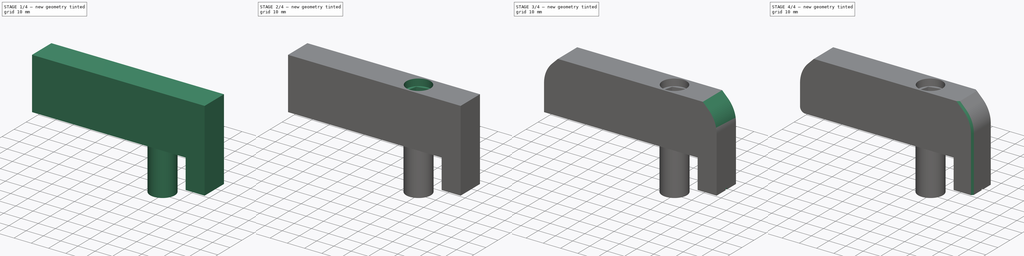
[diagram: build sequence overview — one tinted view per stage of 4, left to right]
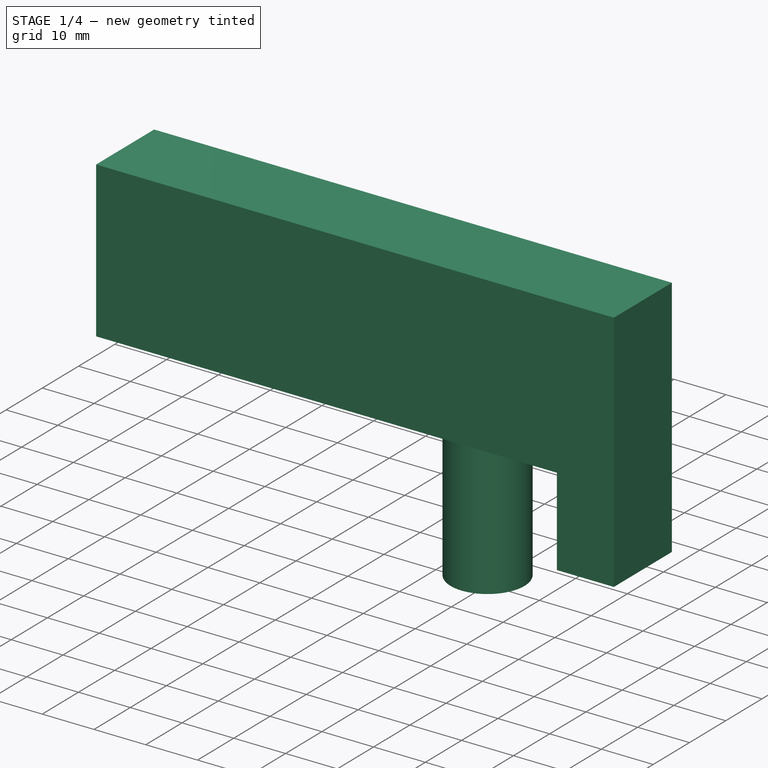
[diagram: stage 1 of 4 — iso view after this stage's code; geometry added in this stage tinted green]
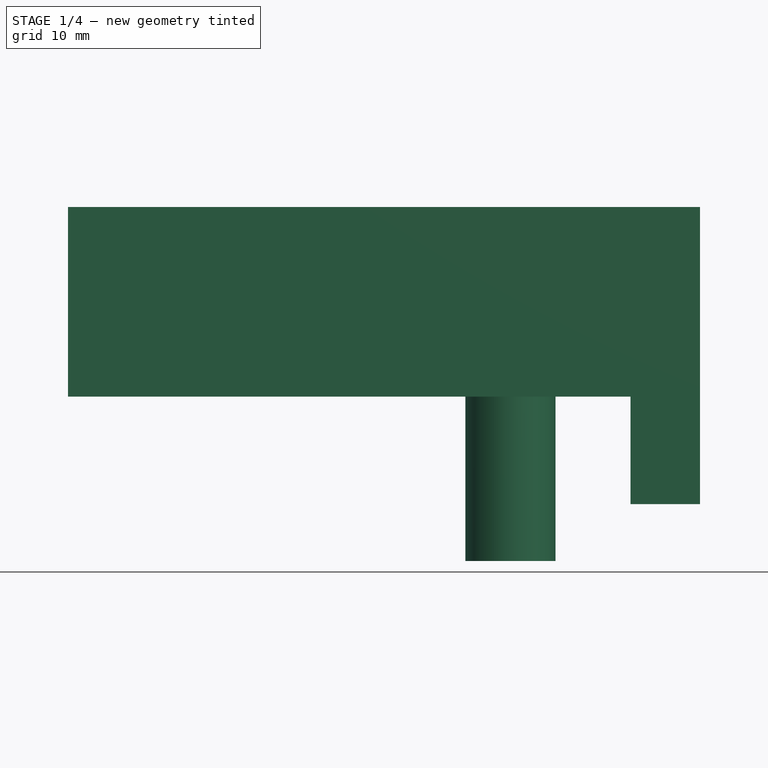
[diagram: stage 1 of 4 — front view after this stage's code; geometry added in this stage tinted green]
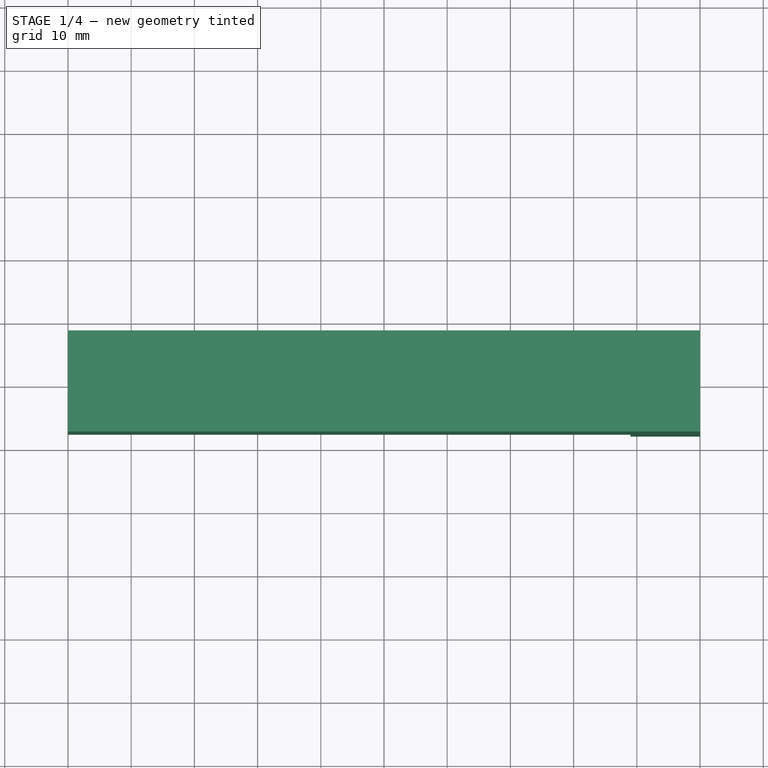
[diagram: stage 1 of 4 — top view after this stage's code; geometry added in this stage tinted green]
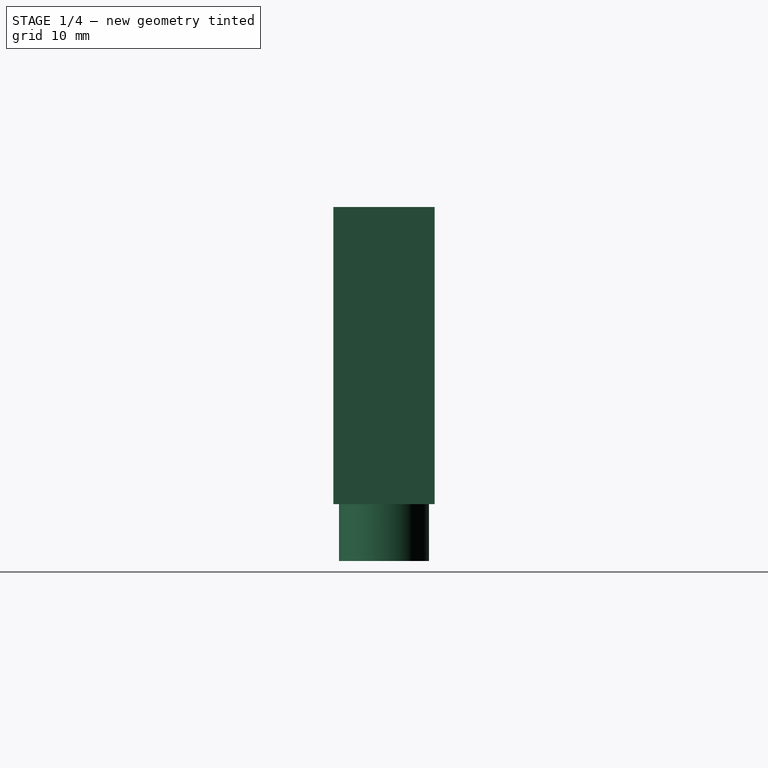
[diagram: stage 1 of 4 — right view after this stage's code; geometry added in this stage tinted green]
FCSTD DOCUMENT  (FreeCAD 0.19R)
Label: pedalpaddles
License: All rights reserved
LicenseURL: http://en.wikipedia.org/wiki/All_rights_reserved
objects: Sketcher::SketchObject×7, PartDesign::Pocket×4, PartDesign::Pad×3, PartDesign::Chamfer×3, PartDesign::Fillet×2, PartDesign::Body×1
note: 32 computed .brp shape members not serialized (recipe doc carries the construction recipe); baked Part::Feature solids carry a one-line shape summary decoded from their .brp

FEATURE [Sketcher::SketchObject] Sketch
  FullyConstrained = true
  MapMode = 5
  Support = -> [XY_Plane]
  sketch-geometry (4):
    g0: LineSegment StartX=-50 StartY=8 StartZ=0 EndX=50 EndY=8 EndZ=0
    g1: LineSegment StartX=50 StartY=8 StartZ=0 EndX=50 EndY=-8 EndZ=0
    g2: LineSegment StartX=50 StartY=-8 StartZ=0 EndX=-50 EndY=-8 EndZ=0
    g3: LineSegment StartX=-50 StartY=-8 StartZ=0 EndX=-50 EndY=8 EndZ=0
  constraints (11):
    c: Coincident(g0,g1)
    c: Coincident(g1,g2)
    c: Coincident(g2,g3)
    c: Coincident(g3,g0)
    c: Horizontal(g0)
    c: Horizontal(g2)
    c: Vertical(g1)
    c: Vertical(g3)
    c: Distance(g3) = 16
    c: Symmetric(g0,g2,g-1)
    c: Distance(g0) = 100
FEATURE [PartDesign::Pad] Pad
  Direction = (1,1,1)
  Length = 30
  Length2 = 100
  Profile = -> Sketch
  Type = 0
FEATURE [Sketcher::SketchObject] Sketch001
  FullyConstrained = true
  MapMode = 5
  Placement = pos=(0,0,0) rot=(1,0,0;3.14159rad)
  Support = -> [Pad]
  sketch-geometry (1):
    g0: Circle CenterX=20 CenterY=0 CenterZ=0 NormalX=0 NormalY=0 NormalZ=1 AngleXU=0 Radius=7.125
  constraints (3):
    c: DistanceX(g0) = 20
    c: PointOnObject(g0,g-1)
    c: Diameter(g0) = 14.25
FEATURE [PartDesign::Pad] Pad001
  BaseFeature = -> Pad
  Direction = (1,1,1)
  Length = 26
  Length2 = 100
  Profile = -> Sketch001
  Type = 0
FEATURE [Sketcher::SketchObject] Sketch002
  FullyConstrained = true
  MapMode = 5
  Placement = pos=(0,0,0) rot=(1,0,0;3.14159rad)
  Support = -> [Pad001]
  sketch-geometry (4):
    g0: LineSegment StartX=39 StartY=8 StartZ=0 EndX=50 EndY=8 EndZ=0
    g1: LineSegment StartX=50 StartY=8 StartZ=0 EndX=50 EndY=-8 EndZ=0
    g2: LineSegment StartX=50 StartY=-8 StartZ=0 EndX=39 EndY=-8 EndZ=0
    g3: LineSegment StartX=39 StartY=-8 StartZ=0 EndX=39 EndY=8 EndZ=0
  constraints (11):
    c: Coincident(g0,g1)
    c: Coincident(g1,g2)
    c: Coincident(g2,g3)
    c: Coincident(g3,g0)
    c: Horizontal(g0)
    c: Horizontal(g2)
    c: Vertical(g3)
    c: Distance(g1) = 16
    c: Symmetric(g0,g1,g-1)
    c: Distance(g0) = 11
    c: DistanceX(g0) = 50
FEATURE [PartDesign::Pad] Pad002
  BaseFeature = -> Pad001
  Direction = (1,1,1)
  Length = 17
  Length2 = 100
  Profile = -> Sketch002
  Type = 0
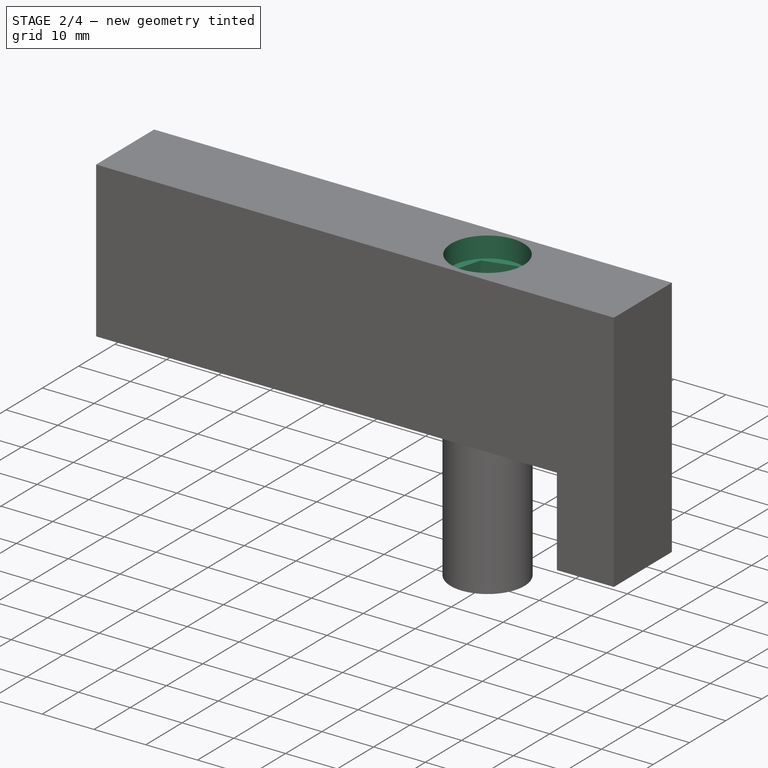
[diagram: stage 2 of 4 — iso view after this stage's code; geometry added in this stage tinted green]
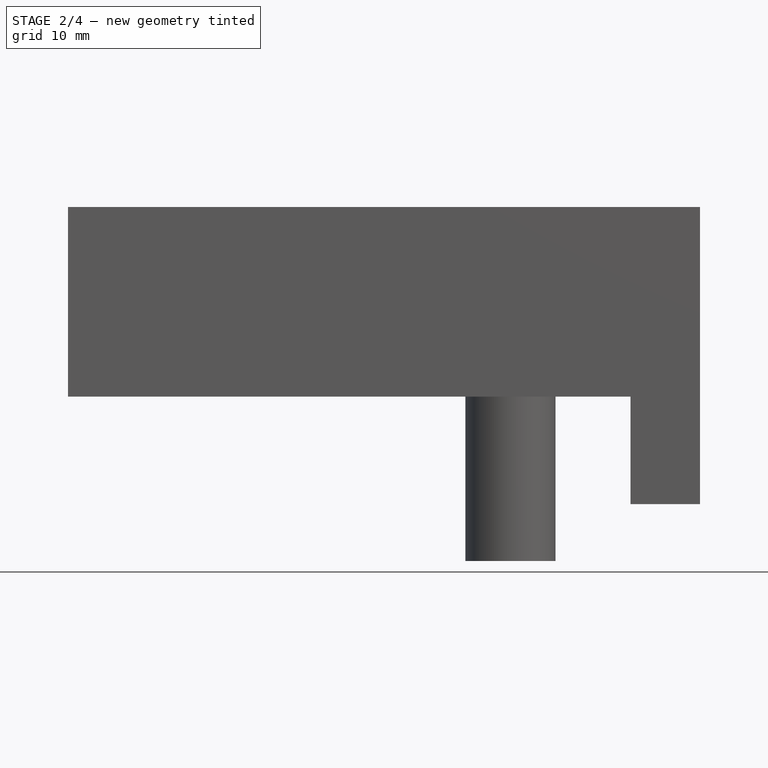
[diagram: stage 2 of 4 — front view after this stage's code; geometry added in this stage tinted green]
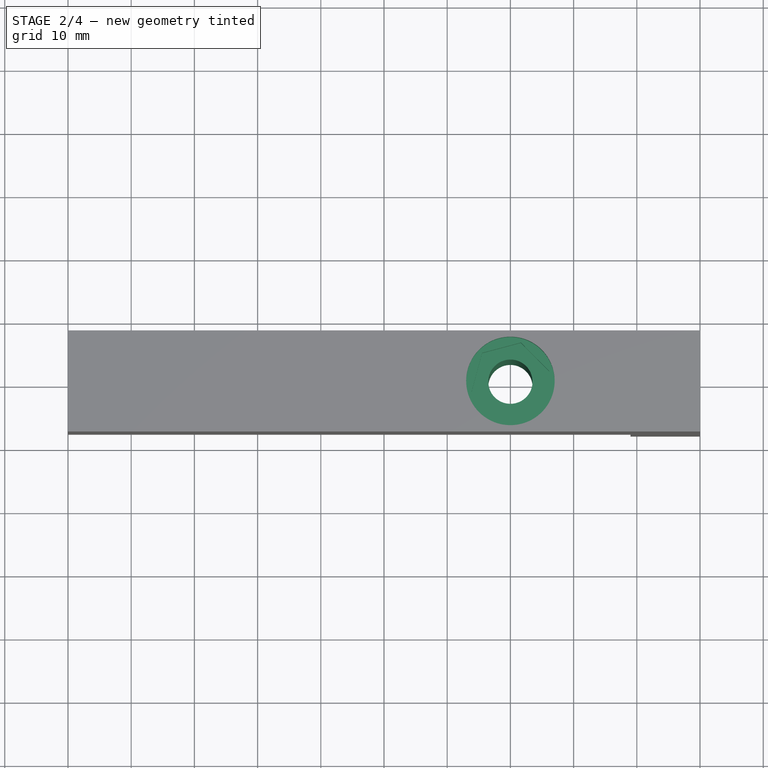
[diagram: stage 2 of 4 — top view after this stage's code; geometry added in this stage tinted green]
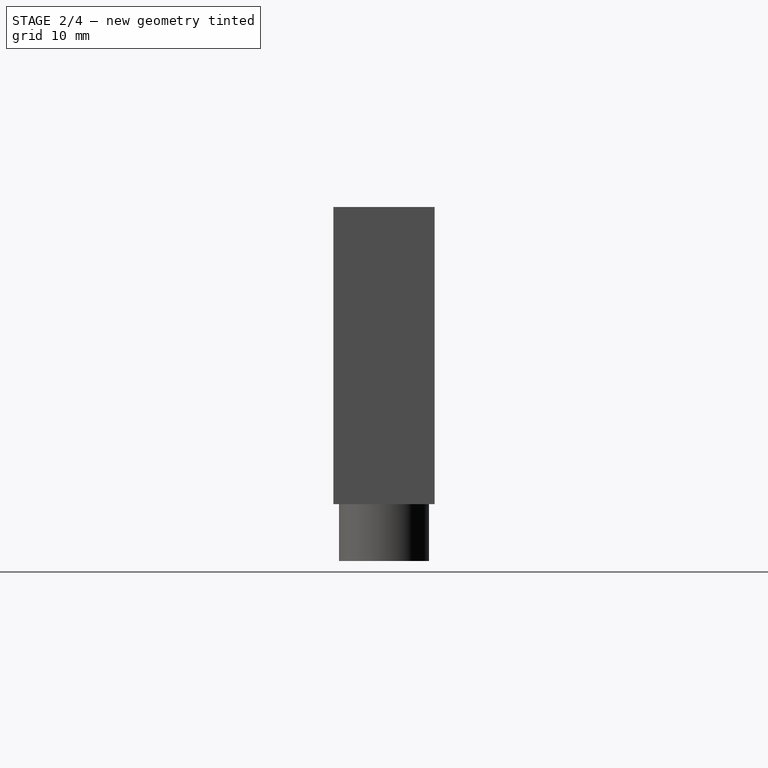
[diagram: stage 2 of 4 — right view after this stage's code; geometry added in this stage tinted green]
FEATURE [Sketcher::SketchObject] Sketch004
  FullyConstrained = false
  MapMode = 5
  Placement = pos=(0,0,-26) rot=(1,0,0;3.14159rad)
  Support = -> [Pad002]
  sketch-geometry (1):
    g0: Circle CenterX=20 CenterY=0 CenterZ=0 NormalX=0 NormalY=0 NormalZ=1 AngleXU=0 Radius=3.5
  constraints (1):
    c: Diameter(g0) = 7
FEATURE [PartDesign::Pocket] Pocket
  BaseFeature = -> Pad002
  Length = 5
  Length2 = 100
  Profile = -> Sketch004
  Type = 1
FEATURE [Sketcher::SketchObject] Sketch005
  FullyConstrained = false
  MapMode = 5
  Placement = pos=(0,0,30) rot=(0,0,1;0rad)
  Support = -> [Pocket]
  sketch-geometry (1):
    g0: Circle CenterX=20 CenterY=0 CenterZ=0 NormalX=0 NormalY=0 NormalZ=1 AngleXU=0 Radius=7
  constraints (1):
    c: Diameter(g0) = 14
FEATURE [PartDesign::Pocket] Pocket001
  BaseFeature = -> Pocket
  Length = 4
  Length2 = 100
  Profile = -> Sketch005
  Type = 0
FEATURE [Sketcher::SketchObject] Sketch006
  FullyConstrained = false
  MapMode = 5
  Placement = pos=(0,0,30) rot=(0,0,1;0rad)
  Support = -> [Pocket001]
  sketch-geometry (7):
    g0: LineSegment StartX=24.4825 StartY=-4.49894 StartZ=0 EndX=26.1374 EndY=1.6325 EndZ=0
    g1: LineSegment StartX=26.1374 StartY=1.6325 StartZ=0 EndX=21.6549 EndY=6.13144 EndZ=0
    g2: LineSegment StartX=21.6549 StartY=6.13144 StartZ=0 EndX=15.5175 EndY=4.49894 EndZ=0
    g3: LineSegment StartX=15.5175 StartY=4.49894 StartZ=0 EndX=13.8626 EndY=-1.6325 EndZ=0
    g4: LineSegment StartX=13.8626 StartY=-1.6325 StartZ=0 EndX=18.3451 EndY=-6.13144 EndZ=0
    g5: LineSegment StartX=18.3451 StartY=-6.13144 StartZ=0 EndX=24.4825 EndY=-4.49894 EndZ=0
    g6: Circle CenterX=20 CenterY=0 CenterZ=0 NormalX=0 NormalY=0 NormalZ=1 AngleXU=0 Radius=6.35085
  constraints (14):
    c: Coincident(g0,g1)
    c: Coincident(g1,g2)
    c: Coincident(g2,g3)
    c: Coincident(g3,g4)
    c: Coincident(g4,g5)
    c: Coincident(g5,g0)
    c: Equal(g0, g1-g5) x5
    c: PointOnObject(g0,g6)
    c: PointOnObject(g1,g6)
    c: PointOnObject(g2,g6)
    c: PointOnObject(g3,g6)
    c: PointOnObject(g4,g6)
    c: PointOnObject(g5,g6)
    c: Distance(g0,g2) = 11
FEATURE [PartDesign::Pocket] Pocket002
  BaseFeature = -> Pocket001
  Length = 7
  Length2 = 100
  Profile = -> Sketch006
  Type = 0
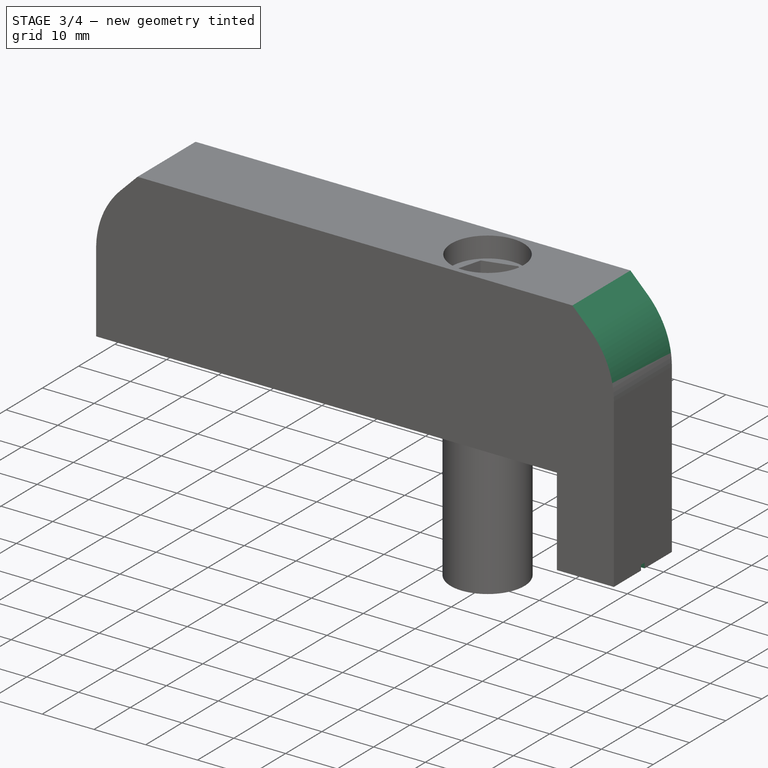
[diagram: stage 3 of 4 — iso view after this stage's code; geometry added in this stage tinted green]
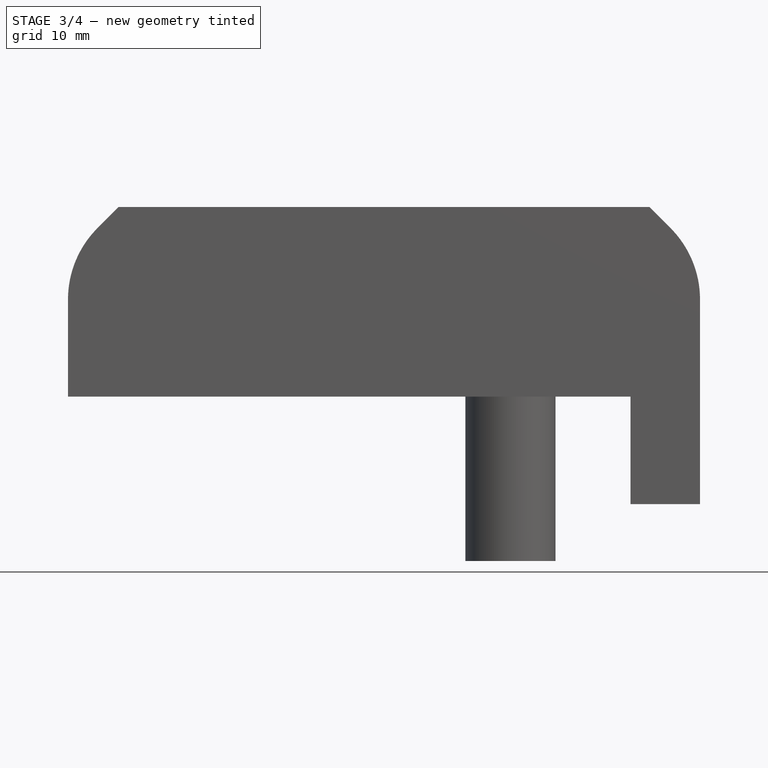
[diagram: stage 3 of 4 — front view after this stage's code; geometry added in this stage tinted green]
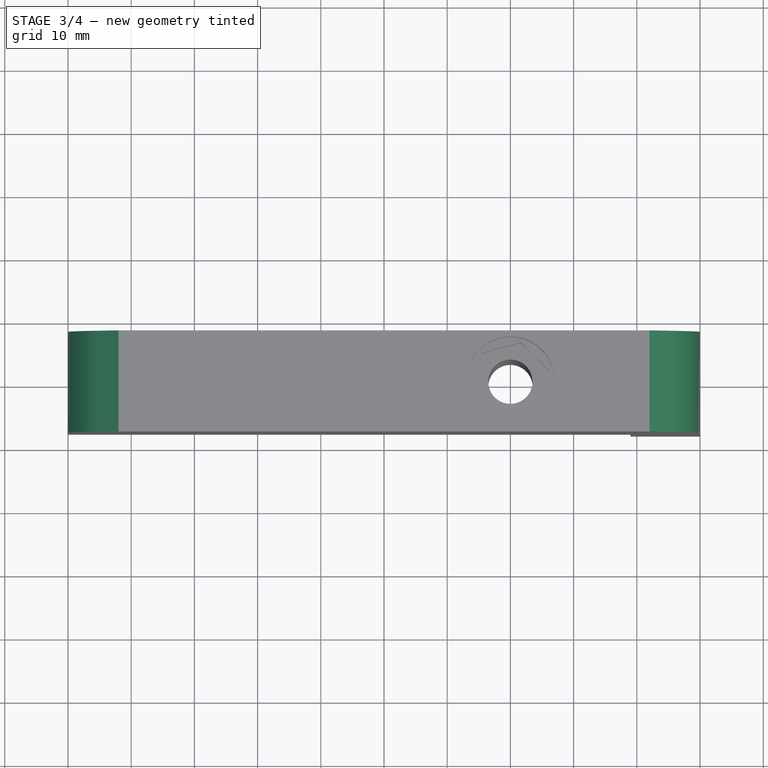
[diagram: stage 3 of 4 — top view after this stage's code; geometry added in this stage tinted green]
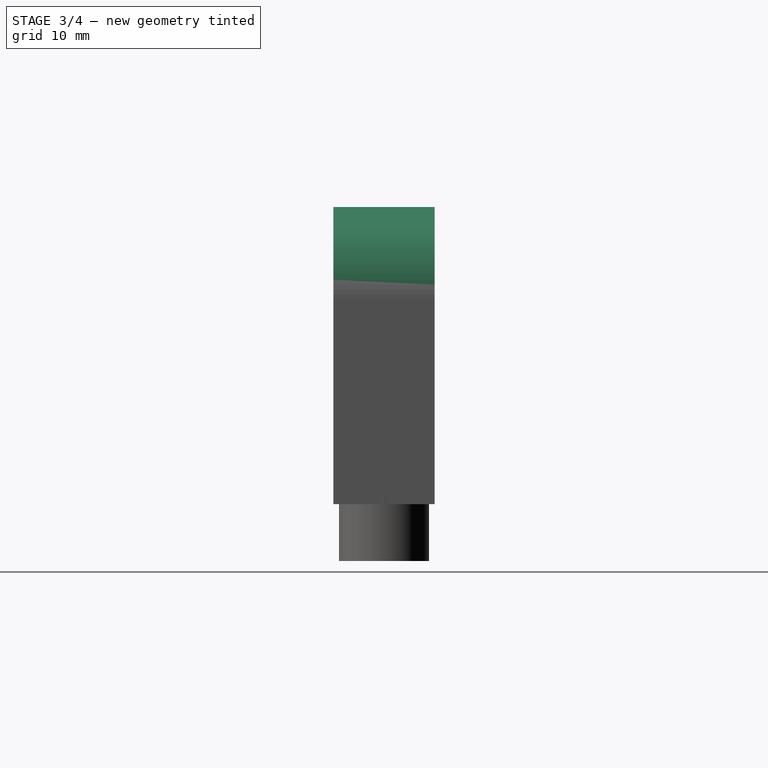
[diagram: stage 3 of 4 — right view after this stage's code; geometry added in this stage tinted green]
FEATURE [Sketcher::SketchObject] Sketch007
  FullyConstrained = false
  MapMode = 5
  Placement = pos=(0,0,-17) rot=(1,0,0;3.14159rad)
  Support = -> [Pocket002]
  sketch-geometry (4):
    g0: LineSegment StartX=35.3079 StartY=0.5 StartZ=0 EndX=62.4454 EndY=0.5 EndZ=0
    g1: LineSegment StartX=62.4454 StartY=0.5 StartZ=0 EndX=62.4454 EndY=-0.5 EndZ=0
    g2: LineSegment StartX=62.4454 StartY=-0.5 StartZ=0 EndX=35.3079 EndY=-0.5 EndZ=0
    g3: LineSegment StartX=35.3079 StartY=-0.5 StartZ=0 EndX=35.3079 EndY=0.5 EndZ=0
  constraints (9):
    c: Coincident(g0,g1)
    c: Coincident(g1,g2)
    c: Coincident(g2,g3)
    c: Coincident(g3,g0)
    c: Horizontal(g0)
    c: Horizontal(g2)
    c: Vertical(g3)
    c: Distance(g1) = 1
    c: Symmetric(g1,g0,g-1)
FEATURE [PartDesign::Pocket] Pocket003
  BaseFeature = -> Pocket002
  Length = 1
  Length2 = 100
  Profile = -> Sketch007
  Type = 0
FEATURE [PartDesign::Chamfer] Chamfer
  Angle = 45
  Base = -> Pocket003 [Edge11,Edge8]
  BaseFeature = -> Pocket003
  ChamferType = 0
  FlipDirection = false
  Size = 8
  Size2 = 1
  SupportTransform = false
FEATURE [PartDesign::Fillet] Fillet
  Base = -> Chamfer [Edge22,Edge9]
  BaseFeature = -> Chamfer
  Radius = 16
  SupportTransform = false
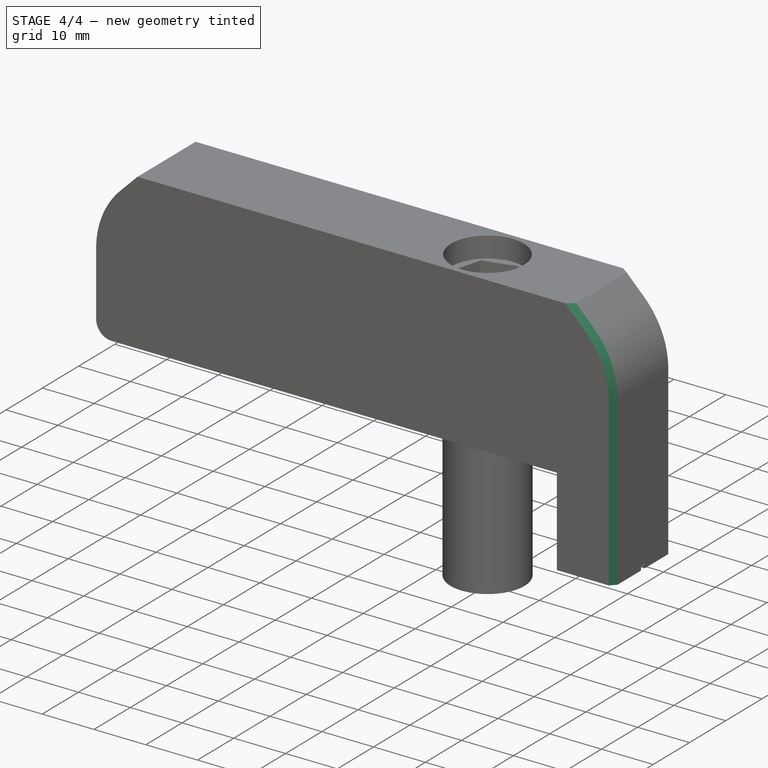
[diagram: stage 4 of 4 — iso view after this stage's code; geometry added in this stage tinted green]
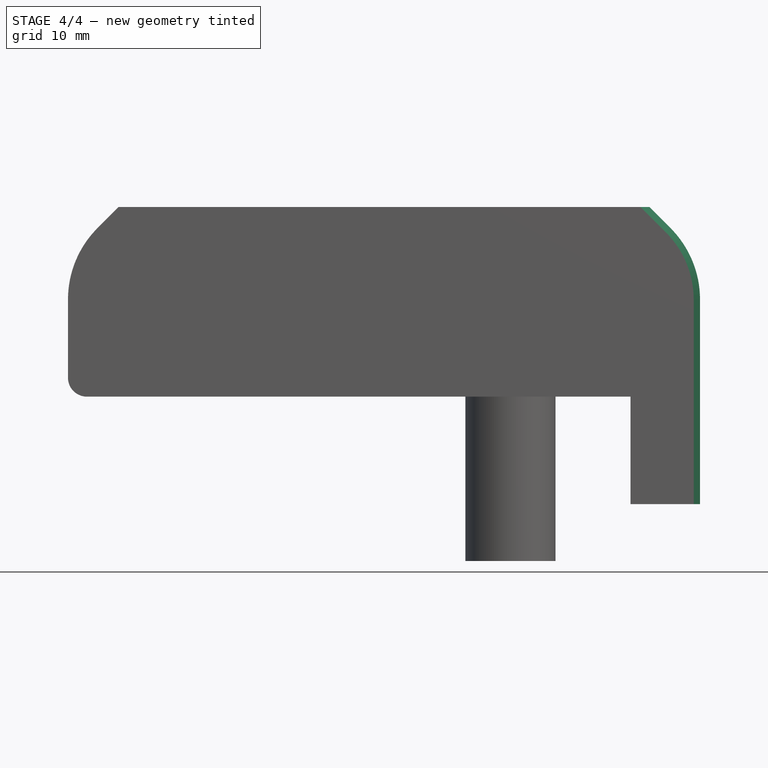
[diagram: stage 4 of 4 — front view after this stage's code; geometry added in this stage tinted green]
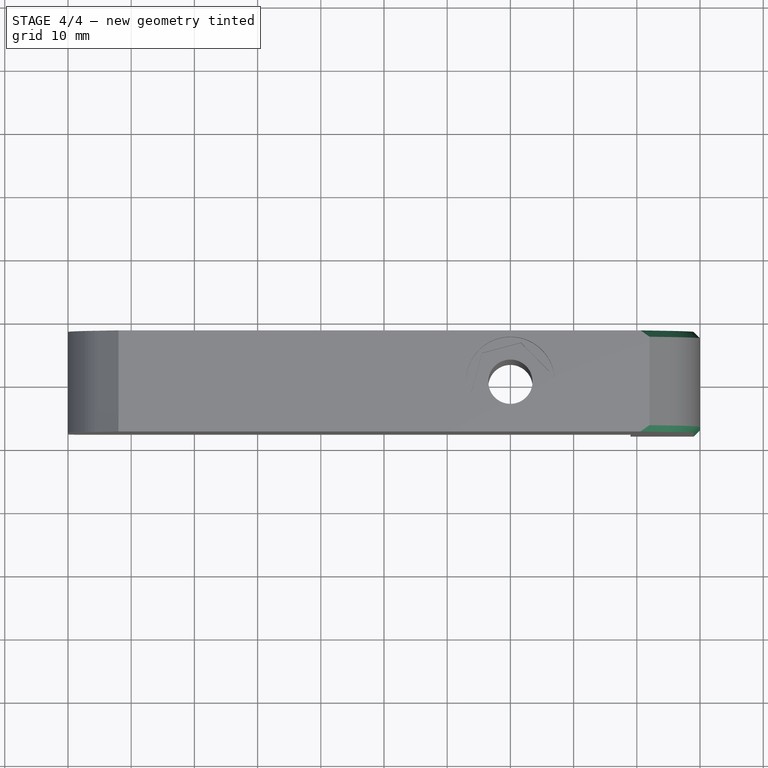
[diagram: stage 4 of 4 — top view after this stage's code; geometry added in this stage tinted green]
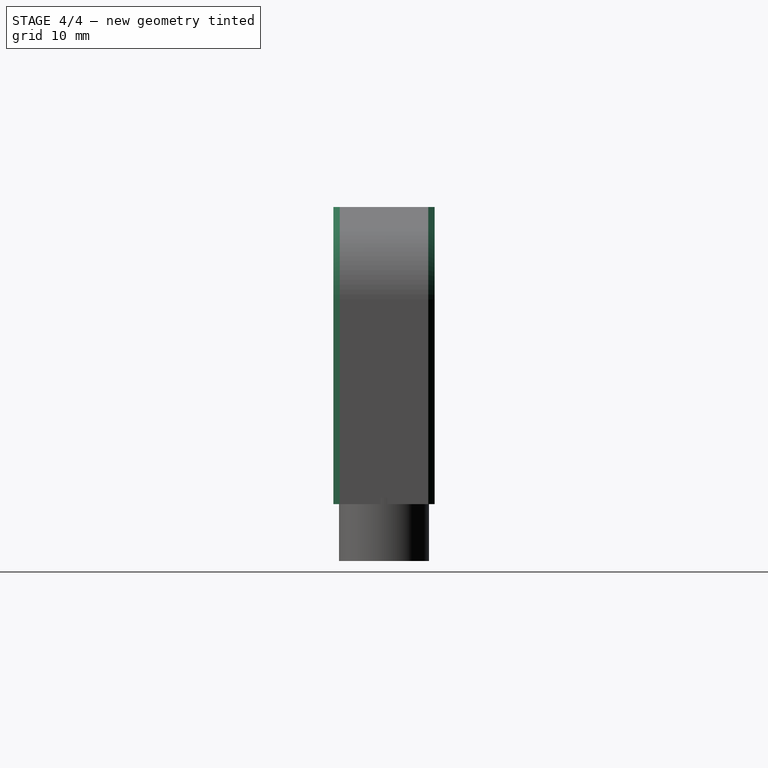
[diagram: stage 4 of 4 — right view after this stage's code; geometry added in this stage tinted green]
FEATURE [PartDesign::Fillet] Fillet001
  Base = -> Fillet [Edge12]
  BaseFeature = -> Fillet
  Radius = 3
  SupportTransform = false
FEATURE [PartDesign::Chamfer] Chamfer001
  Angle = 45
  Base = -> Fillet001 [Edge23]
  BaseFeature = -> Fillet001
  ChamferType = 0
  FlipDirection = false
  Size = 1
  Size2 = 1
  SupportTransform = false
FEATURE [PartDesign::Chamfer] Chamfer002
  Angle = 45
  Base = -> Chamfer001 [Edge57]
  BaseFeature = -> Chamfer001
  ChamferType = 0
  FlipDirection = false
  Size = 1
  Size2 = 1
  SupportTransform = false
FEATURE [PartDesign::Body] Body
  Group = -> [Sketch,Pad,Sketch001,Pad001,Sketch002,Pad002,Sketch004,Sketch005,Sketch006,Pocket,Pocket001,Pocket002,Sketch007,Pocket003,Chamfer,Fillet,Fillet001,Chamfer001,Chamfer002]
  Origin = -> Origin
  Tip = -> Chamfer002
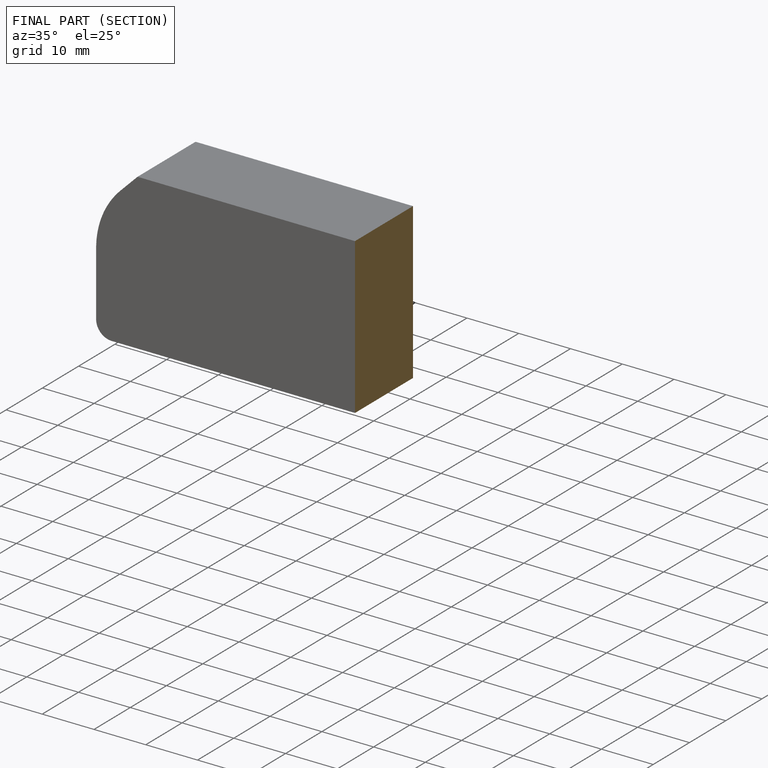
[diagram: finished part — half-section view (interior)]
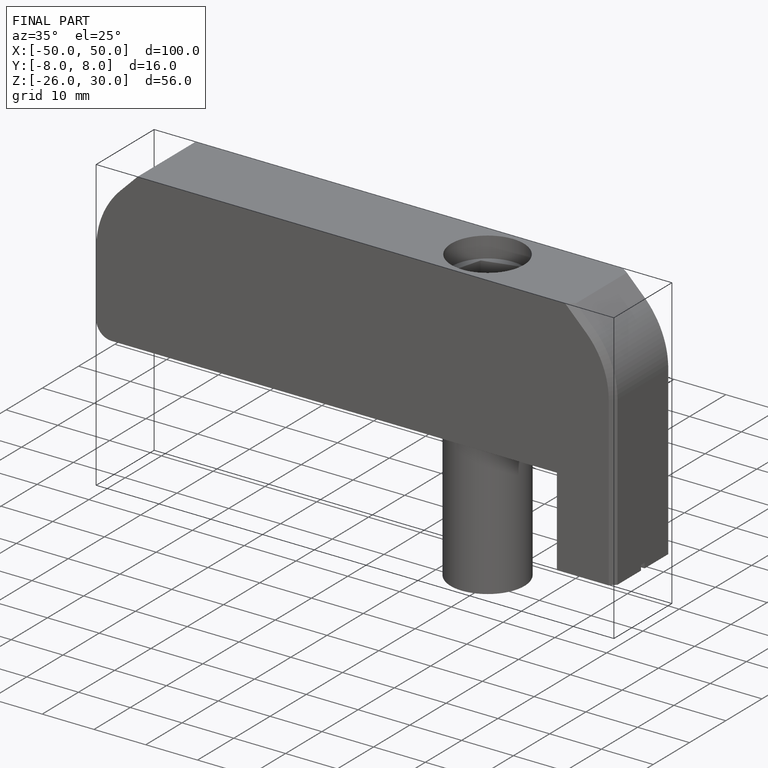
[diagram: finished part — iso view with bounding-box wireframe]
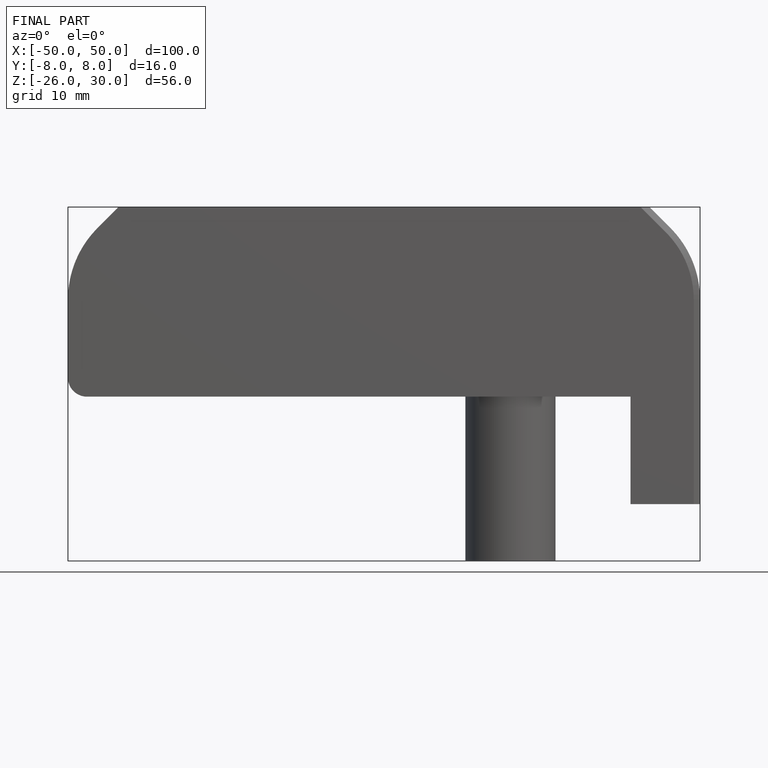
[diagram: finished part — front view with bounding-box wireframe]
